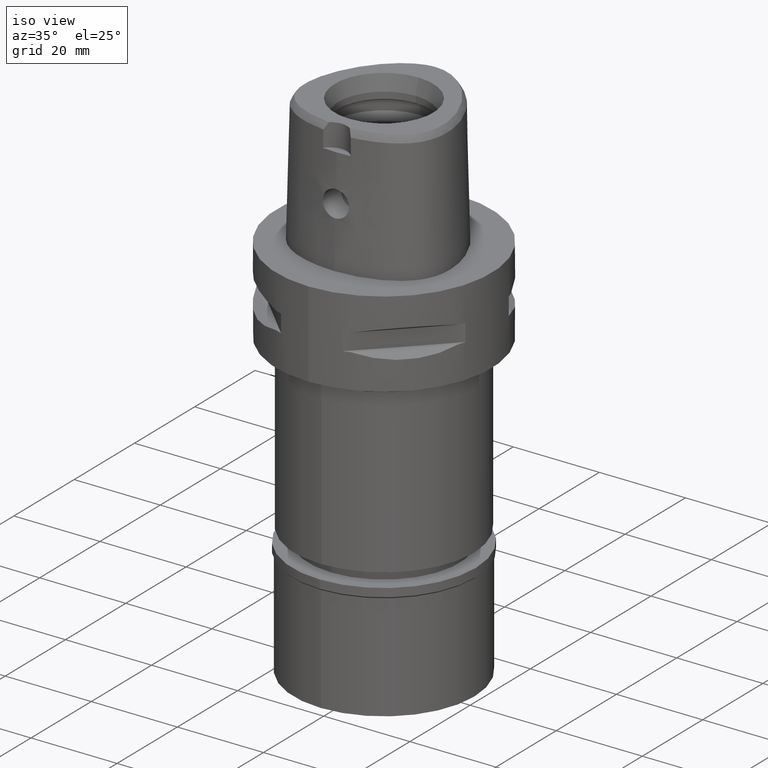
[diagram: clean part render]
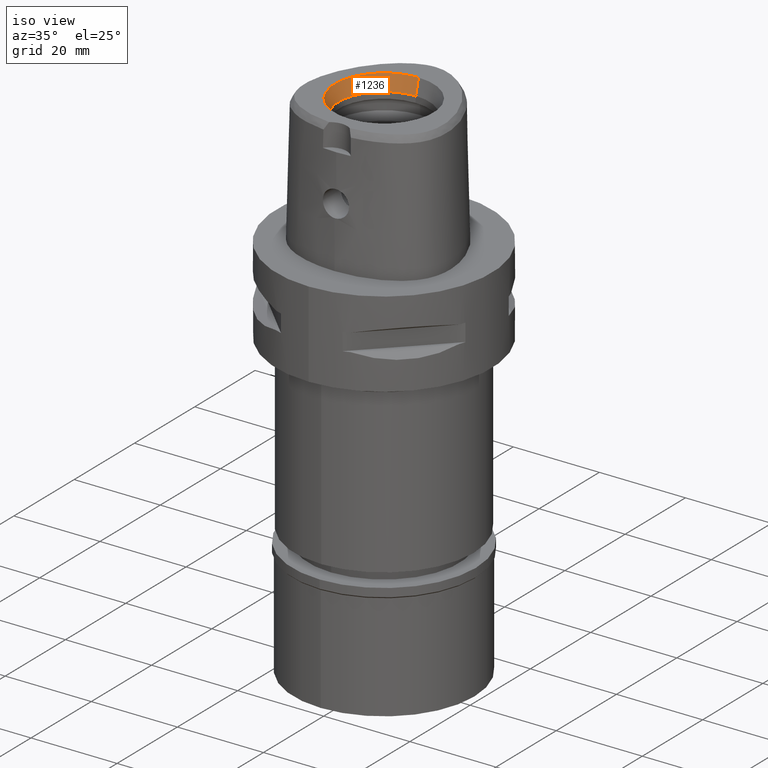
[diagram: same view with one face highlighted and labeled with its STEP entity id]
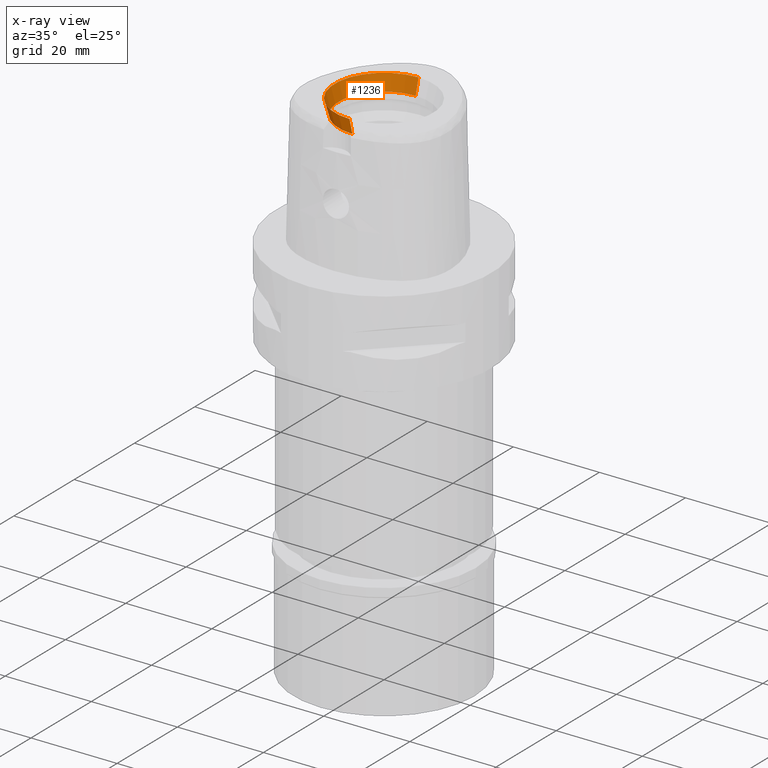
[diagram: x-ray of the same camera — body ghosted, the highlighted face saturated]
A machine part, iso view. The second image highlights one B-rep face of the part: STEP entity #1236.
The next image is the same camera in x-ray: the body ghosted, the highlighted face saturated — about 0% of this face is hidden behind the body in this view.
In plain terms, the highlighted conical surface has half-angle 15 deg.
Its self-contained STEP definition (entity closure, byte-faithful):
#122 = CARTESIAN_POINT ( 'NONE',  ( 0.0000000000000000000, 1.570609519905999910E-14, 30.00000000000000000 ) ) ;
#127 = DIRECTION ( 'NONE',  ( 0.0000000000000000000, 0.2588190451023999472, 0.9659258262891006197 ) ) ;
#395 = CONICAL_SURFACE ( 'NONE', #847, 10.96891108674999948, 0.2617993877991000029 ) ;
#451 = DIRECTION ( 'NONE',  ( 0.0000000000000000000, -0.2588190451023999472, 0.9659258262891006197 ) ) ;
#496 = CARTESIAN_POINT ( 'NONE',  ( 0.0000000000000000000, -10.50000000000000000, 26.50000000000000000 ) ) ;
#498 = ORIENTED_EDGE ( 'NONE', *, *, #2334, .T. ) ;
#745 = EDGE_LOOP ( 'NONE', ( #1216, #3976, #498, #3208 ) ) ;
#809 = CARTESIAN_POINT ( 'NONE',  ( 0.0000000000000000000, 10.50000000000000000, 26.50000000000000000 ) ) ;
#814 = VERTEX_POINT ( 'NONE', #3367 ) ;
#847 = AXIS2_PLACEMENT_3D ( 'NONE', #1189, #2664, #2316 ) ;
#1040 = AXIS2_PLACEMENT_3D ( 'NONE', #122, #1152, #2278 ) ;
#1152 = DIRECTION ( 'NONE',  ( 0.0000000000000000000, 0.0000000000000000000, 1.000000000000000000 ) ) ;
#1189 = CARTESIAN_POINT ( 'NONE',  ( 0.0000000000000000000, 1.570609519905999910E-14, 28.25000000000000000 ) ) ;
#1216 = ORIENTED_EDGE ( 'NONE', *, *, #4689, .F. ) ;
#1236 = ADVANCED_FACE ( 'NONE', ( #3485 ), #395, .F. ) ;
#1609 = CARTESIAN_POINT ( 'NONE',  ( 0.0000000000000000000, 11.43782217350000074, 30.00000000000000000 ) ) ;
#1952 = VERTEX_POINT ( 'NONE', #1609 ) ;
#1957 = AXIS2_PLACEMENT_3D ( 'NONE', #3250, #4762, #3276 ) ;
#2114 = CIRCLE ( 'NONE', #1957, 10.50000000000000000 ) ;
#2134 = CIRCLE ( 'NONE', #1040, 11.43782217350000074 ) ;
#2278 = DIRECTION ( 'NONE',  ( 0.0000000000000000000, 1.000000000000000000, 0.0000000000000000000 ) ) ;
#2316 = DIRECTION ( 'NONE',  ( 0.0000000000000000000, 1.000000000000000000, 0.0000000000000000000 ) ) ;
#2334 = EDGE_CURVE ( 'NONE', #4478, #1952, #3112, .T. ) ;
#2635 = VERTEX_POINT ( 'NONE', #496 ) ;
#2664 = DIRECTION ( 'NONE',  ( 0.0000000000000000000, 0.0000000000000000000, 1.000000000000000000 ) ) ;
#3052 = VECTOR ( 'NONE', #127, 1000.000000000000114 ) ;
#3112 = LINE ( 'NONE', #809, #3052 ) ;
#3151 = VECTOR ( 'NONE', #451, 1000.000000000000114 ) ;
#3208 = ORIENTED_EDGE ( 'NONE', *, *, #4789, .T. ) ;
#3250 = CARTESIAN_POINT ( 'NONE',  ( 0.0000000000000000000, 1.570609519905999910E-14, 26.50000000000000000 ) ) ;
#3276 = DIRECTION ( 'NONE',  ( 0.0000000000000000000, 1.000000000000000000, 0.0000000000000000000 ) ) ;
#3367 = CARTESIAN_POINT ( 'NONE',  ( 0.0000000000000000000, -11.43782217350000074, 30.00000000000000000 ) ) ;
#3485 = FACE_OUTER_BOUND ( 'NONE', #745, .T. ) ;
#3678 = CARTESIAN_POINT ( 'NONE',  ( 0.0000000000000000000, 10.50000000000000000, 26.50000000000000000 ) ) ;
#3784 = CARTESIAN_POINT ( 'NONE',  ( 0.0000000000000000000, -10.50000000000000000, 26.50000000000000000 ) ) ;
#3806 = LINE ( 'NONE', #3784, #3151 ) ;
#3976 = ORIENTED_EDGE ( 'NONE', *, *, #4299, .F. ) ;
#4299 = EDGE_CURVE ( 'NONE', #4478, #2635, #2114, .T. ) ;
#4478 = VERTEX_POINT ( 'NONE', #3678 ) ;
#4689 = EDGE_CURVE ( 'NONE', #2635, #814, #3806, .T. ) ;
#4762 = DIRECTION ( 'NONE',  ( 0.0000000000000000000, 0.0000000000000000000, 1.000000000000000000 ) ) ;
#4789 = EDGE_CURVE ( 'NONE', #1952, #814, #2134, .T. ) ;